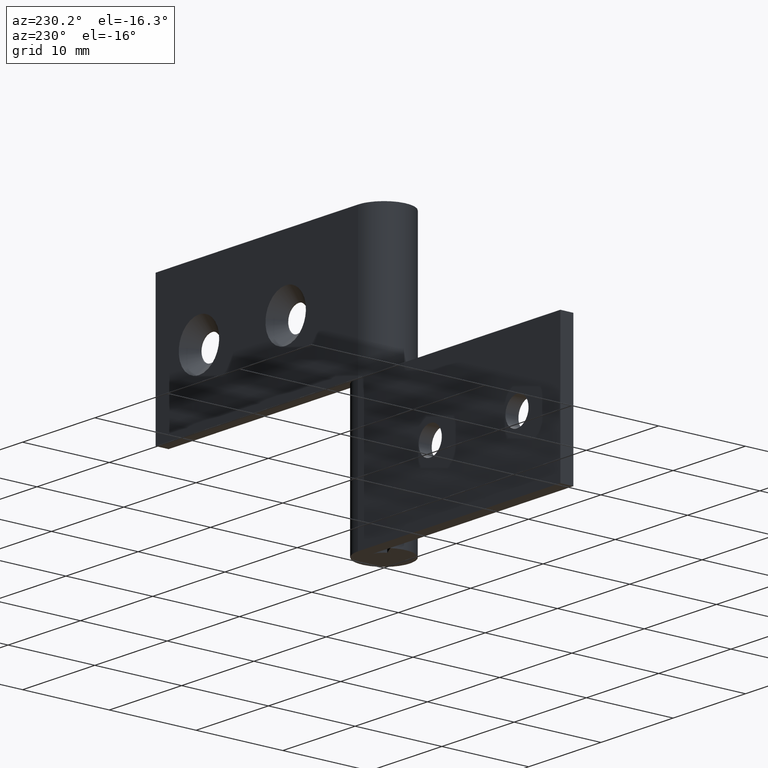
[diagram: clean part render]
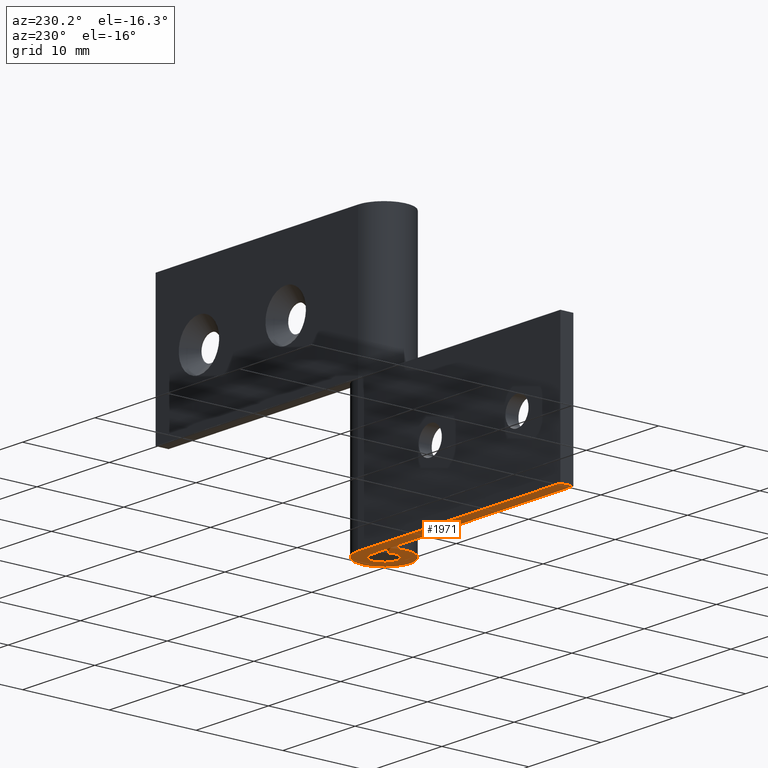
[diagram: same view with one face highlighted and labeled with its STEP entity id]
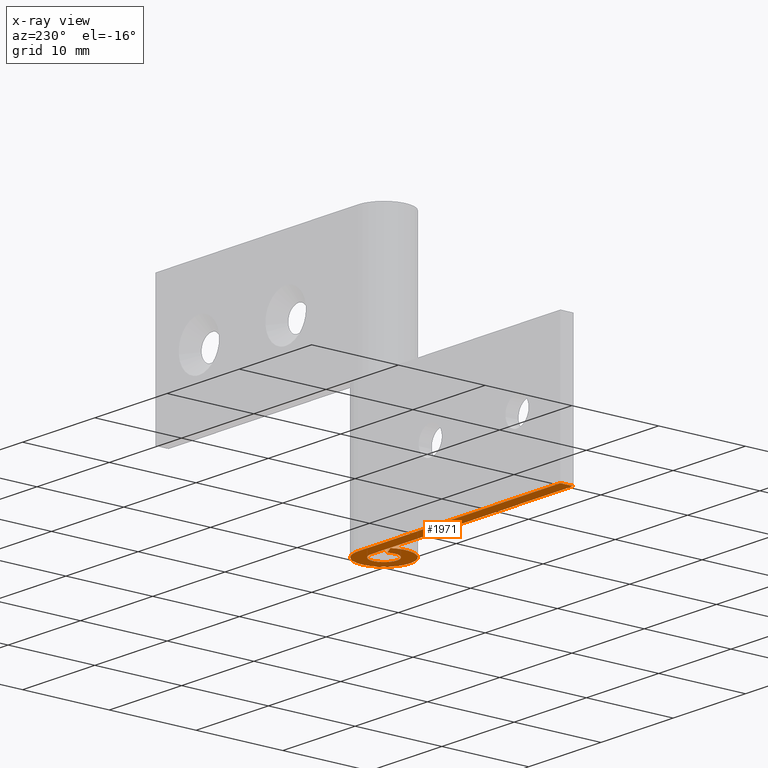
[diagram: x-ray of the same camera — body ghosted, the highlighted face saturated]
A machine part, auxiliary view. The second image highlights one B-rep face of the part: STEP entity #1971.
The next image is the same camera in x-ray: the body ghosted, the highlighted face saturated — about 0% of this face is hidden behind the body in this view.
In plain terms, the highlighted face is a freeform B-spline surface patch.
Its self-contained STEP definition (entity closure, byte-faithful):
#1894=CARTESIAN_POINT('',(-29.548447466705891,-3.299492229615193,0.0));
#1895=CARTESIAN_POINT('',(4.548398784471763,-3.299492229615193,0.0));
#1896=CARTESIAN_POINT('',(-29.548447466705891,3.299690265446972,0.0));
#1897=CARTESIAN_POINT('',(4.548398784471763,3.299690265446972,0.0));
#1898=B_SPLINE_SURFACE_WITH_KNOTS('',1,1,((#1894,#1896),(#1895,#1897)),.UNSPECIFIED.,.F.,.F.,.U.,(2,2),(2,2),(0.0,34.096846251177652),(0.0,6.599182495062165),.UNSPECIFIED.);
#1899=CARTESIAN_POINT('',(-28.0,1.500000000000000,0.0));
#1900=VERTEX_POINT('',#1899);
#1901=CARTESIAN_POINT('',(-2.755364E-016,1.500000000000000,0.0));
#1902=VERTEX_POINT('',#1901);
#1903=CARTESIAN_POINT('',(-28.0,1.500000000000000,0.0));
#1904=CARTESIAN_POINT('',(-2.755364E-016,1.500000000000000,0.0));
#1905=QUASI_UNIFORM_CURVE('',1,(#1903,#1904),.UNSPECIFIED.,.F.,.U.);
#1906=EDGE_CURVE('',#1900,#1902,#1905,.T.);
#1907=ORIENTED_EDGE('',*,*,#1906,.F.);
#1908=CARTESIAN_POINT('',(-28.0,3.0,0.0));
#1909=VERTEX_POINT('',#1908);
#1910=CARTESIAN_POINT('',(-28.0,3.0,0.0));
#1911=CARTESIAN_POINT('',(-28.0,1.500000000000000,0.0));
#1912=QUASI_UNIFORM_CURVE('',1,(#1910,#1911),.UNSPECIFIED.,.F.,.U.);
#1913=EDGE_CURVE('',#1909,#1900,#1912,.T.);
#1914=ORIENTED_EDGE('',*,*,#1913,.F.);
#1915=CARTESIAN_POINT('',(1.836910E-016,3.0,0.0));
#1916=VERTEX_POINT('',#1915);
#1917=CARTESIAN_POINT('',(1.836910E-016,3.0,0.0));
#1918=CARTESIAN_POINT('',(-28.0,3.0,0.0));
#1919=QUASI_UNIFORM_CURVE('',1,(#1917,#1918),.UNSPECIFIED.,.F.,.U.);
#1920=EDGE_CURVE('',#1916,#1909,#1919,.T.);
#1921=ORIENTED_EDGE('',*,*,#1920,.F.);
#1922=CARTESIAN_POINT('',(-2.626309197333780,1.450000000000000,0.0));
#1923=VERTEX_POINT('',#1922);
#1924=CARTESIAN_POINT('',(0.0,3.0,0.0));
#1925=CARTESIAN_POINT('',(2.290598042424808,3.0,0.0));
#1926=CARTESIAN_POINT('',(2.894028888043301,0.790314364775724,0.0));
#1927=CARTESIAN_POINT('',(3.497459733661794,-1.419371270448550,0.0));
#1928=CARTESIAN_POINT('',(1.524795068197693,-2.583602136552761,0.0));
#1929=CARTESIAN_POINT('',(-0.447869597266408,-3.747833002656974,0.0));
#1930=CARTESIAN_POINT('',(-2.090650590886088,-2.151552952364328,0.0));
#1931=CARTESIAN_POINT('',(-3.733431584505768,-0.555272902071681,0.0));
#1932=CARTESIAN_POINT('',(-2.626309197333781,1.449999999999996,0.0));
#1940=(BOUNDED_CURVE()B_SPLINE_CURVE(2,(#1924,#1925,#1926,#1927,#1928,#1929,#1930,#1931,#1932),.UNSPECIFIED.,.F.,.U.)B_SPLINE_CURVE_WITH_KNOTS((3,2,2,2,3),(0.0,0.250000000000000,0.500000000000000,0.750000000000000,1.0),.UNSPECIFIED.)CURVE()GEOMETRIC_REPRESENTATION_ITEM()RATIONAL_B_SPLINE_CURVE((1.0,0.794807562115481,1.0,0.794807562115481,1.0,0.794807562115481,1.0,0.794807562115481,1.0))REPRESENTATION_ITEM(''));
#1941=EDGE_CURVE('',#1916,#1923,#1940,.T.);
#1942=ORIENTED_EDGE('',*,*,#1941,.T.);
#1943=CARTESIAN_POINT('',(-1.313154598666890,0.725000000000000,0.0));
#1944=VERTEX_POINT('',#1943);
#1945=CARTESIAN_POINT('',(-1.313154598666890,0.725000000000000,0.0));
#1946=CARTESIAN_POINT('',(-2.626309197333780,1.450000000000000,0.0));
#1947=QUASI_UNIFORM_CURVE('',1,(#1945,#1946),.UNSPECIFIED.,.F.,.U.);
#1948=EDGE_CURVE('',#1944,#1923,#1947,.T.);
#1949=ORIENTED_EDGE('',*,*,#1948,.F.);
#1950=CARTESIAN_POINT('',(0.0,1.500000000000000,0.0));
#1951=CARTESIAN_POINT('',(1.145299021212404,1.500000000000001,0.0));
#1952=CARTESIAN_POINT('',(1.447014444021651,0.395157182387862,0.0));
#1953=CARTESIAN_POINT('',(1.748729866830897,-0.709685635224275,0.0));
#1954=CARTESIAN_POINT('',(0.762397534098847,-1.291801068276381,0.0));
#1955=CARTESIAN_POINT('',(-0.223934798633204,-1.873916501328487,0.0));
#1956=CARTESIAN_POINT('',(-1.045325295443044,-1.075776476182164,0.0));
#1957=CARTESIAN_POINT('',(-1.866715792252885,-0.277636451035840,0.0));
#1958=CARTESIAN_POINT('',(-1.313154598666891,0.724999999999998,0.0));
#1966=(BOUNDED_CURVE()B_SPLINE_CURVE(2,(#1950,#1951,#1952,#1953,#1954,#1955,#1956,#1957,#1958),.UNSPECIFIED.,.F.,.U.)B_SPLINE_CURVE_WITH_KNOTS((3,2,2,2,3),(0.0,0.250000000000000,0.500000000000000,0.750000000000000,1.0),.UNSPECIFIED.)CURVE()GEOMETRIC_REPRESENTATION_ITEM()RATIONAL_B_SPLINE_CURVE((1.0,0.794807562115481,1.0,0.794807562115481,1.0,0.794807562115481,1.0,0.794807562115481,1.0))REPRESENTATION_ITEM(''));
#1967=EDGE_CURVE('',#1902,#1944,#1966,.T.);
#1968=ORIENTED_EDGE('',*,*,#1967,.F.);
#1969=EDGE_LOOP('',(#1907,#1914,#1921,#1942,#1949,#1968));
#1970=FACE_OUTER_BOUND('',#1969,.T.);
#1971=ADVANCED_FACE('',(#1970),#1898,.F.);